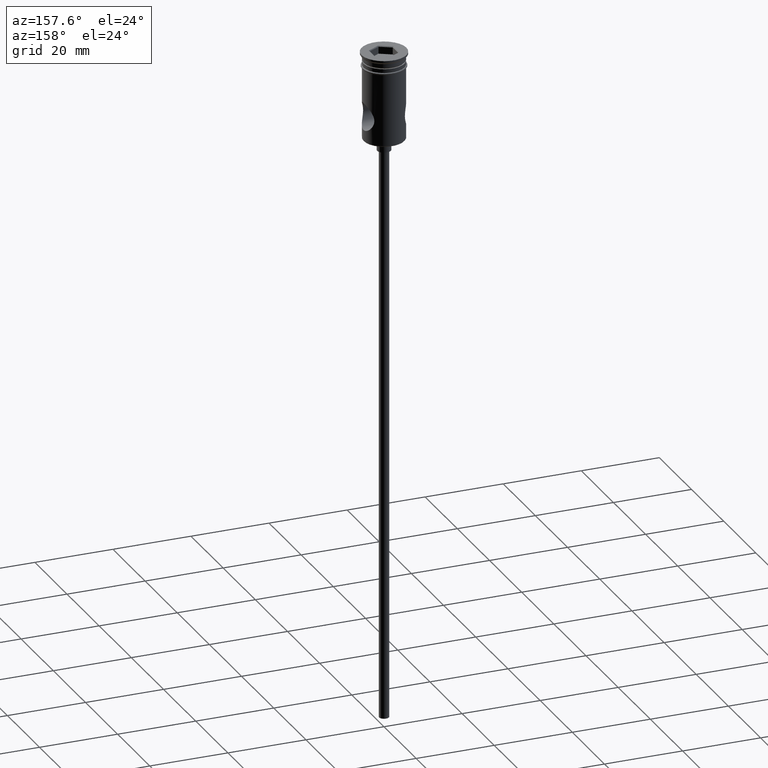
[diagram: clean part render]
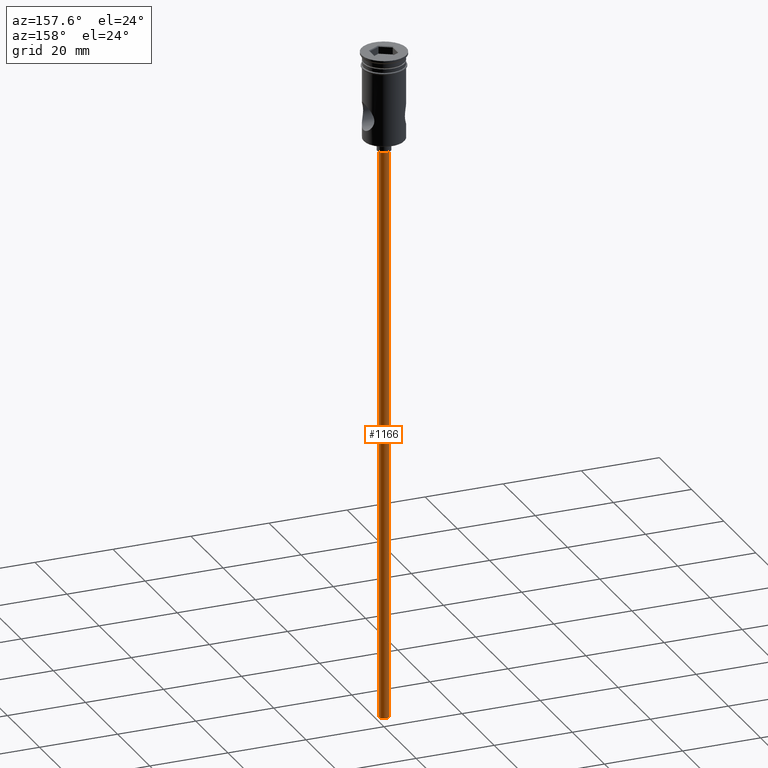
[diagram: same view with one face highlighted and labeled with its STEP entity id]
A machine part, auxiliary view. The second image highlights one B-rep face of the part: STEP entity #1166.
In plain terms, the highlighted cylindrical surface (edge-blend (fillet) strip) has radius 1.25 mm, axis along (-0, -0, 1).
Its self-contained STEP definition (entity closure, byte-faithful):
#15 = DIRECTION ( 'NONE',  ( 0.000000000000000000, 0.000000000000000000, -1.000000000000000000 ) ) ;
#69 = EDGE_CURVE ( 'NONE', #1309, #454, #848, .T. ) ;
#104 = EDGE_CURVE ( 'NONE', #1113, #812, #731, .T. ) ;
#124 = CARTESIAN_POINT ( 'NONE',  ( 0.000000000000000000, 0.000000000000000000, -172.5000000000000000 ) ) ;
#138 = ORIENTED_EDGE ( 'NONE', *, *, #69, .F. ) ;
#186 = DIRECTION ( 'NONE',  ( -1.000000000000000000, 0.000000000000000000, 0.000000000000000000 ) ) ;
#255 = CARTESIAN_POINT ( 'NONE',  ( -1.250000000000000000, 1.530808498934191571E-16, -172.5000000000000000 ) ) ;
#256 = LINE ( 'NONE', #593, #782 ) ;
#331 = CYLINDRICAL_SURFACE ( 'NONE', #332, 1.250000000000000000 ) ;
#332 = AXIS2_PLACEMENT_3D ( 'NONE', #567, #655, #1230 ) ;
#371 = ORIENTED_EDGE ( 'NONE', *, *, #1094, .F. ) ;
#374 = AXIS2_PLACEMENT_3D ( 'NONE', #124, #15, #909 ) ;
#424 = ORIENTED_EDGE ( 'NONE', *, *, #586, .T. ) ;
#454 = VERTEX_POINT ( 'NONE', #1278 ) ;
#542 = VECTOR ( 'NONE', #675, 1000.000000000000000 ) ;
#552 = CARTESIAN_POINT ( 'NONE',  ( -1.250000000000000000, 1.530808498934191571E-16, -172.5000000000000000 ) ) ;
#567 = CARTESIAN_POINT ( 'NONE',  ( 0.000000000000000000, 0.000000000000000000, -172.5000000000000000 ) ) ;
#586 = EDGE_CURVE ( 'NONE', #1309, #1113, #796, .T. ) ;
#593 = CARTESIAN_POINT ( 'NONE',  ( 1.250000000000000000, 0.000000000000000000, -172.5000000000000000 ) ) ;
#655 = DIRECTION ( 'NONE',  ( -0.000000000000000000, -0.000000000000000000, 1.000000000000000000 ) ) ;
#661 = EDGE_LOOP ( 'NONE', ( #138, #424, #993, #371 ) ) ;
#675 = DIRECTION ( 'NONE',  ( -0.000000000000000000, -0.000000000000000000, 1.000000000000000000 ) ) ;
#720 = CARTESIAN_POINT ( 'NONE',  ( 1.250000000000000000, 0.000000000000000000, -25.50000000000000000 ) ) ;
#723 = DIRECTION ( 'NONE',  ( -0.000000000000000000, -0.000000000000000000, 1.000000000000000000 ) ) ;
#731 = CIRCLE ( 'NONE', #779, 1.250000000000000000 ) ;
#779 = AXIS2_PLACEMENT_3D ( 'NONE', #948, #1285, #186 ) ;
#782 = VECTOR ( 'NONE', #723, 1000.000000000000000 ) ;
#796 = LINE ( 'NONE', #552, #542 ) ;
#798 = FACE_OUTER_BOUND ( 'NONE', #661, .T. ) ;
#812 = VERTEX_POINT ( 'NONE', #720 ) ;
#848 = CIRCLE ( 'NONE', #374, 1.250000000000000000 ) ;
#909 = DIRECTION ( 'NONE',  ( -1.000000000000000000, 0.000000000000000000, 0.000000000000000000 ) ) ;
#948 = CARTESIAN_POINT ( 'NONE',  ( 0.000000000000000000, 0.000000000000000000, -25.50000000000000000 ) ) ;
#993 = ORIENTED_EDGE ( 'NONE', *, *, #104, .T. ) ;
#1019 = CARTESIAN_POINT ( 'NONE',  ( -1.250000000000000000, 1.530808498934191571E-16, -25.50000000000000000 ) ) ;
#1094 = EDGE_CURVE ( 'NONE', #454, #812, #256, .T. ) ;
#1113 = VERTEX_POINT ( 'NONE', #1019 ) ;
#1166 = ADVANCED_FACE ( 'NONE', ( #798 ), #331, .T. ) ;
#1230 = DIRECTION ( 'NONE',  ( 1.000000000000000000, 0.000000000000000000, 0.000000000000000000 ) ) ;
#1278 = CARTESIAN_POINT ( 'NONE',  ( 1.250000000000000000, 0.000000000000000000, -172.5000000000000000 ) ) ;
#1285 = DIRECTION ( 'NONE',  ( 0.000000000000000000, 0.000000000000000000, -1.000000000000000000 ) ) ;
#1309 = VERTEX_POINT ( 'NONE', #255 ) ;